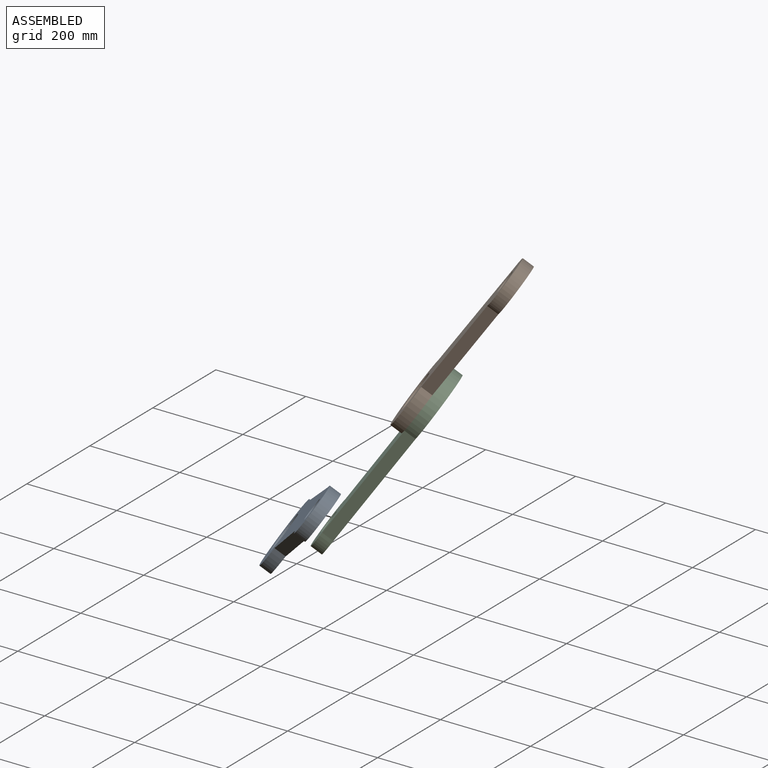
[diagram: assembled view]
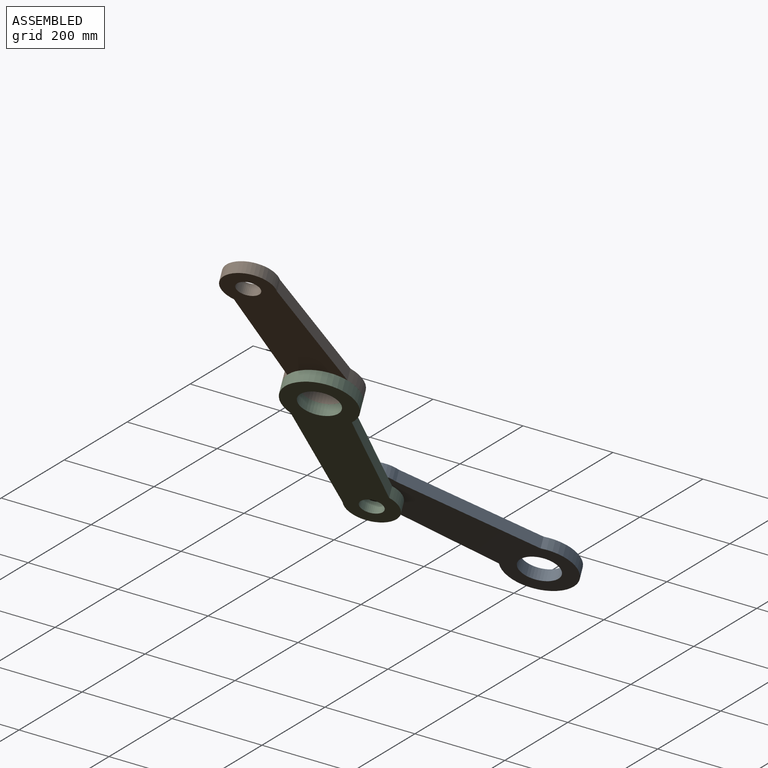
[diagram: assembled view, second angle]
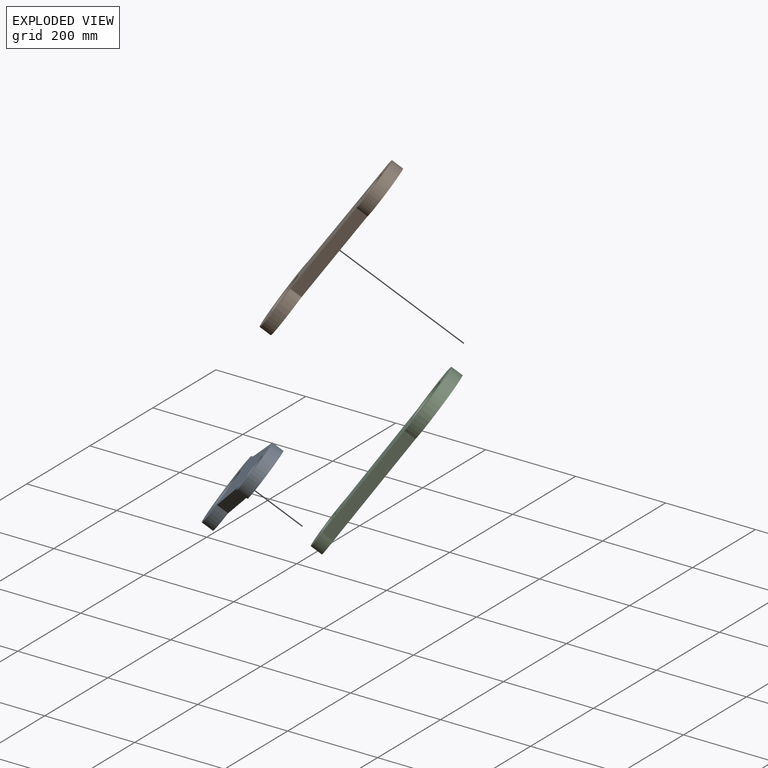
[diagram: exploded view]
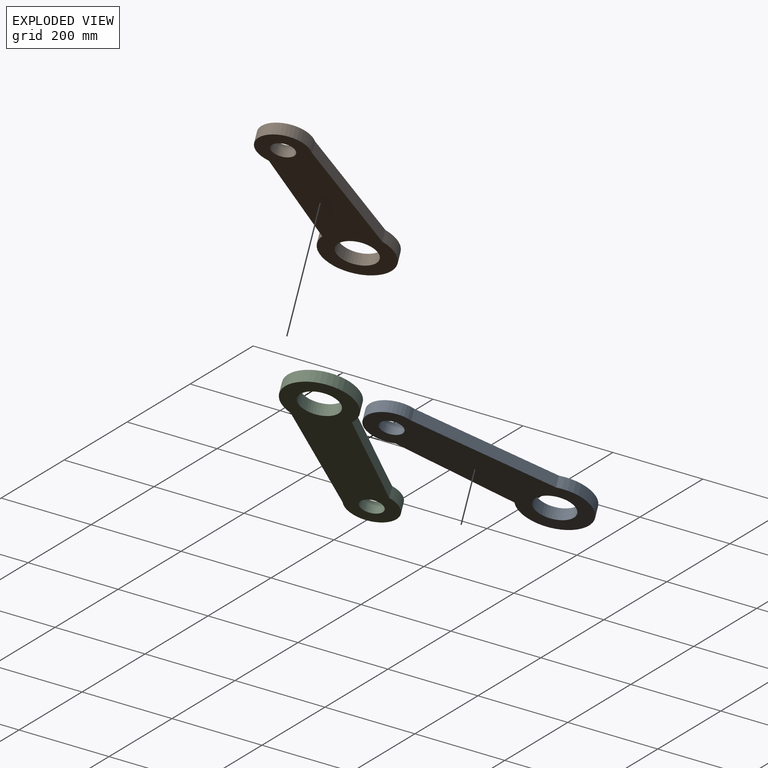
[diagram: exploded view, second angle]
ASSEMBLY  parts=3 mates=2
PART A: 8 faces, bbox 482.7x25.4x156.9 mm
  f0: cylinder r=75.8mm len=151.59mm, axis (0,1,0), area 8810.5mm2, adj f1,f3,f6,f7
  f1: plane 258.42x25.4mm, normal (0.08,0,-1), area 6586.4mm2, adj f0,f2,f6,f7
  f2: cylinder r=54.58mm len=109.15mm, axis (0,1,0), area 5552.8mm2, adj f1,f3,f6,f7
  f3: plane 305.51x25.4mm, normal (-0.03,0,1), area 7764.2mm2, adj f0,f2,f6,f7
  f4: cylinder r=42.19mm len=84.37mm, axis (0,1,0), area 6732.6mm2, adj f6,f7
  f5: cylinder r=24.29mm len=48.58mm, axis (0,1,0), area 3876.7mm2, adj f6,f7
  f6: plane 482.71x156.89mm, normal (0,-1,0), area 45047.8mm2, adj f0,f1,f2,f3,f4,f5
  f7: plane 482.71x156.89mm, normal (0,1,0), area 45047.8mm2, adj f0,f1,f2,f3,f4,f5
PART B: same geometry as A
PART C: same geometry as A
PLACE A rot(axis=(-0.65,-0.12,-0.75),74.2deg) t=(380.86,171.58,-630.3)mm
PLACE B rot(axis=(-0.76,-0.47,-0.45),85.4deg) t=(808.55,91.94,-101.69)mm
PLACE C rot(axis=(0.29,0.77,-0.57),137.4deg) t=(591.12,123.7,-431.53)mm
MATE revolute B.f4 <-> C.f4  axis (0.78,0.28,-0.56) through (687.65,115.77,-256.84)mm
MATE revolute C.f2 <-> A.f2  axis (-0.78,-0.28,0.56) through (486.92,91.62,-546.62)mm
